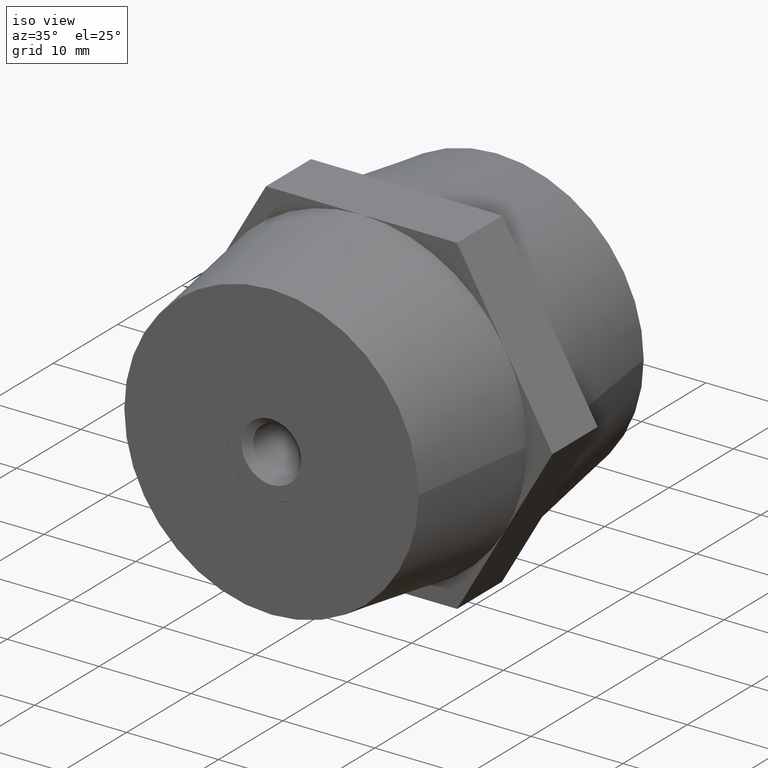
[diagram: clean part render]
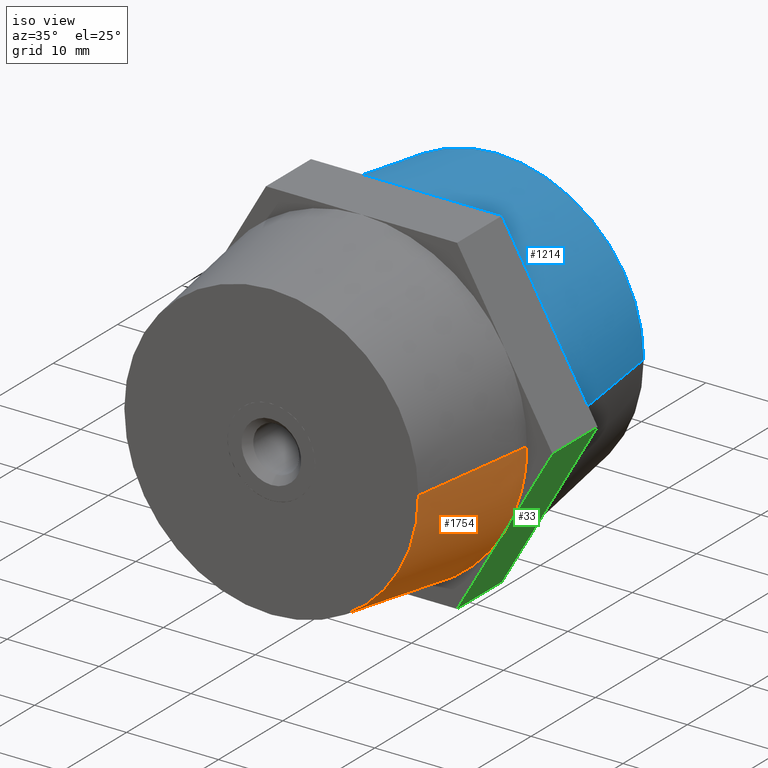
[diagram: same view with three faces highlighted in distinct colors, each labeled with its STEP entity id]
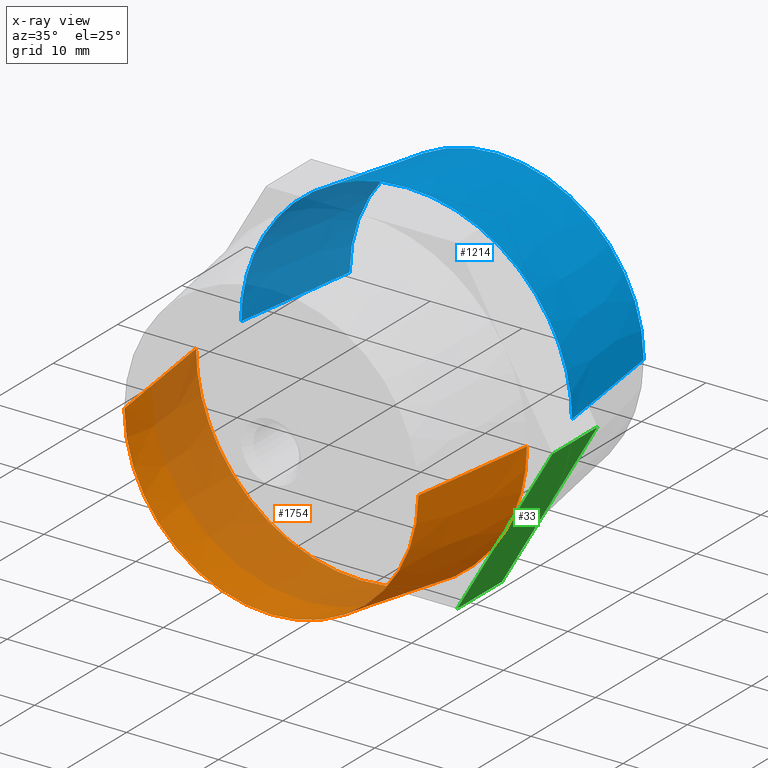
[diagram: x-ray of the same camera — body ghosted, the three highlighted faces saturated]
A machine part, iso view with three faces highlighted in distinct colors.
The next image is the same camera in x-ray (body ghosted, the three faces saturated) — at least one of them is partly hidden behind the body in this view.
Their STEP definitions:

[orange] entity #1754 — the highlighted conical surface has half-angle 8.13 deg.
#10 = AXIS2_PLACEMENT_3D ( 'NONE', #3198, #2613, #488 ) ;
#69 = DIRECTION ( 'NONE',  ( -0.1414213562373103400, 0.9899494936611663600, 0.0000000000000000000 ) ) ;
#85 = ORIENTED_EDGE ( 'NONE', *, *, #1776, .F. ) ;
#194 = DIRECTION ( 'NONE',  ( 0.0000000000000000000, 0.0000000000000000000, 1.000000000000000000 ) ) ;
#237 = CARTESIAN_POINT ( 'NONE',  ( 2.571758278209440100E-015, -3.500000000000000000, 3.149091769236069700E-016 ) ) ;
#280 = DIRECTION ( 'NONE',  ( 0.0000000000000000000, 0.0000000000000000000, 1.000000000000000000 ) ) ;
#321 = LINE ( 'NONE', #2854, #2091 ) ;
#488 = DIRECTION ( 'NONE',  ( 0.0000000000000000000, 0.0000000000000000000, 1.000000000000000000 ) ) ;
#511 = EDGE_CURVE ( 'NONE', #1406, #1223, #321, .T. ) ;
#538 = EDGE_LOOP ( 'NONE', ( #1194, #927, #1033, #85, #1609, #3114, #2915 ) ) ;
#566 = DIRECTION ( 'NONE',  ( -1.000000000000000000, -1.204669080539449300E-016, 0.0000000000000000000 ) ) ;
#591 = CARTESIAN_POINT ( 'NONE',  ( 18.00000000000000400, -3.500000000000000000, 2.204364238465235400E-015 ) ) ;
#611 = DIRECTION ( 'NONE',  ( -1.000000000000000000, -2.168404344971008900E-016, 0.0000000000000000000 ) ) ;
#702 = AXIS2_PLACEMENT_3D ( 'NONE', #237, #2361, #280 ) ;
#746 = AXIS2_PLACEMENT_3D ( 'NONE', #874, #3565, #611 ) ;
#874 = CARTESIAN_POINT ( 'NONE',  ( 4.286263797015739700E-015, -17.50000000000000000, 0.0000000000000000000 ) ) ;
#927 = ORIENTED_EDGE ( 'NONE', *, *, #1779, .T. ) ;
#1003 = CARTESIAN_POINT ( 'NONE',  ( -17.99999999999999600, -3.500000000000002200, 0.0000000000000000000 ) ) ;
#1033 = ORIENTED_EDGE ( 'NONE', *, *, #2603, .T. ) ;
#1099 = AXIS2_PLACEMENT_3D ( 'NONE', #2274, #3752, #3172 ) ;
#1194 = ORIENTED_EDGE ( 'NONE', *, *, #511, .F. ) ;
#1223 = VERTEX_POINT ( 'NONE', #591 ) ;
#1309 = CARTESIAN_POINT ( 'NONE',  ( -17.99999999999999600, -3.500000000000000000, 0.0000000000000000000 ) ) ;
#1317 = VERTEX_POINT ( 'NONE', #1590 ) ;
#1399 = VECTOR ( 'NONE', #69, 1000.000000000000100 ) ;
#1406 = VERTEX_POINT ( 'NONE', #1954 ) ;
#1560 = EDGE_CURVE ( 'NONE', #1223, #3105, #3568, .T. ) ;
#1590 = CARTESIAN_POINT ( 'NONE',  ( -4.328709192648795100E-016, -3.500000000000000000, -18.00000000000000000 ) ) ;
#1609 = ORIENTED_EDGE ( 'NONE', *, *, #2960, .F. ) ;
#1754 = ADVANCED_FACE ( 'NONE', ( #1992 ), #3094, .T. ) ;
#1776 = EDGE_CURVE ( 'NONE', #2117, #2884, #3893, .T. ) ;
#1779 = EDGE_CURVE ( 'NONE', #1406, #3116, #3381, .T. ) ;
#1827 = CARTESIAN_POINT ( 'NONE',  ( 2.571758278209440100E-015, -3.500000000000000000, 0.0000000000000000000 ) ) ;
#1883 = LINE ( 'NONE', #1003, #1399 ) ;
#1954 = CARTESIAN_POINT ( 'NONE',  ( 16.00000000000000400, -17.49999999999999600, 2.081899558550500300E-015 ) ) ;
#1992 = FACE_OUTER_BOUND ( 'NONE', #538, .T. ) ;
#2091 = VECTOR ( 'NONE', #3181, 1000.000000000000100 ) ;
#2117 = VERTEX_POINT ( 'NONE', #2547 ) ;
#2194 = AXIS2_PLACEMENT_3D ( 'NONE', #2540, #3158, #194 ) ;
#2196 = CIRCLE ( 'NONE', #1099, 18.00000000000000000 ) ;
#2274 = CARTESIAN_POINT ( 'NONE',  ( 2.571758278209440100E-015, -3.500000000000000000, 3.149091769236069700E-016 ) ) ;
#2328 = CARTESIAN_POINT ( 'NONE',  ( 15.58845726811990100, -3.500000000000000000, -9.000000000000000000 ) ) ;
#2361 = DIRECTION ( 'NONE',  ( 0.0000000000000000000, 1.000000000000000000, 0.0000000000000000000 ) ) ;
#2540 = CARTESIAN_POINT ( 'NONE',  ( 2.571758278209440100E-015, -3.500000000000000000, 3.149091769236069700E-016 ) ) ;
#2547 = CARTESIAN_POINT ( 'NONE',  ( -15.58845726811990100, -3.500000000000000000, -9.000000000000000000 ) ) ;
#2603 = EDGE_CURVE ( 'NONE', #3116, #2884, #1883, .T. ) ;
#2613 = DIRECTION ( 'NONE',  ( 0.0000000000000000000, 1.000000000000000000, 0.0000000000000000000 ) ) ;
#2624 = CARTESIAN_POINT ( 'NONE',  ( -15.99999999999999600, -17.50000000000000400, 0.0000000000000000000 ) ) ;
#2645 = AXIS2_PLACEMENT_3D ( 'NONE', #1827, #2975, #566 ) ;
#2854 = CARTESIAN_POINT ( 'NONE',  ( 18.00000000000000400, -3.499999999999997800, 2.204364238465235400E-015 ) ) ;
#2877 = CIRCLE ( 'NONE', #2194, 18.00000000000000000 ) ;
#2884 = VERTEX_POINT ( 'NONE', #1309 ) ;
#2915 = ORIENTED_EDGE ( 'NONE', *, *, #1560, .F. ) ;
#2960 = EDGE_CURVE ( 'NONE', #1317, #2117, #2196, .T. ) ;
#2975 = DIRECTION ( 'NONE',  ( -1.224646799147352000E-016, 1.000000000000000000, 0.0000000000000000000 ) ) ;
#3006 = EDGE_CURVE ( 'NONE', #3105, #1317, #2877, .T. ) ;
#3094 = CONICAL_SURFACE ( 'NONE', #2645, 18.00000000000000000, 0.1418970546041646900 ) ;
#3105 = VERTEX_POINT ( 'NONE', #2328 ) ;
#3114 = ORIENTED_EDGE ( 'NONE', *, *, #3006, .F. ) ;
#3116 = VERTEX_POINT ( 'NONE', #2624 ) ;
#3158 = DIRECTION ( 'NONE',  ( 0.0000000000000000000, 1.000000000000000000, 0.0000000000000000000 ) ) ;
#3172 = DIRECTION ( 'NONE',  ( 0.0000000000000000000, 0.0000000000000000000, 1.000000000000000000 ) ) ;
#3181 = DIRECTION ( 'NONE',  ( 0.1414213562373101100, 0.9899494936611663600, 1.731912112470995400E-017 ) ) ;
#3198 = CARTESIAN_POINT ( 'NONE',  ( 2.571758278209440100E-015, -3.500000000000000000, 3.149091769236069700E-016 ) ) ;
#3381 = CIRCLE ( 'NONE', #746, 16.00000000000000000 ) ;
#3565 = DIRECTION ( 'NONE',  ( -1.224646799147352000E-016, 1.000000000000000000, 0.0000000000000000000 ) ) ;
#3568 = CIRCLE ( 'NONE', #10, 18.00000000000000000 ) ;
#3752 = DIRECTION ( 'NONE',  ( 0.0000000000000000000, 1.000000000000000000, 0.0000000000000000000 ) ) ;
#3893 = CIRCLE ( 'NONE', #702, 18.00000000000000000 ) ;

[blue] entity #1214 — the highlighted conical surface has half-angle 8.13 deg.
#32 = LINE ( 'NONE', #2963, #3326 ) ;
#50 = CARTESIAN_POINT ( 'NONE',  ( -15.58845726811990100, 3.500000000000000000, 9.000000000000000000 ) ) ;
#266 = DIRECTION ( 'NONE',  ( -1.224646799147352000E-016, 1.000000000000000000, 0.0000000000000000000 ) ) ;
#272 = CARTESIAN_POINT ( 'NONE',  ( 1.714505518806294800E-015, 3.500000000000000000, 0.0000000000000000000 ) ) ;
#407 = CIRCLE ( 'NONE', #2785, 16.00000000000000000 ) ;
#508 = CIRCLE ( 'NONE', #1375, 18.00000000000000000 ) ;
#550 = EDGE_CURVE ( 'NONE', #3098, #3527, #32, .T. ) ;
#598 = CIRCLE ( 'NONE', #1039, 18.00000000000000000 ) ;
#735 = EDGE_CURVE ( 'NONE', #2064, #2381, #3462, .T. ) ;
#793 = VECTOR ( 'NONE', #3066, 1000.000000000000100 ) ;
#823 = EDGE_LOOP ( 'NONE', ( #1412, #1063, #3229, #2042, #3303, #3525, #2940 ) ) ;
#892 = CARTESIAN_POINT ( 'NONE',  ( 1.714505518806294800E-015, 3.500000000000000000, 0.0000000000000000000 ) ) ;
#990 = EDGE_CURVE ( 'NONE', #2378, #2064, #508, .T. ) ;
#1011 = VERTEX_POINT ( 'NONE', #2326 ) ;
#1039 = AXIS2_PLACEMENT_3D ( 'NONE', #3846, #1803, #2099 ) ;
#1063 = ORIENTED_EDGE ( 'NONE', *, *, #550, .T. ) ;
#1070 = CARTESIAN_POINT ( 'NONE',  ( -3.004629197474319600E-015, 3.500000000000000000, 18.00000000000000000 ) ) ;
#1113 = CARTESIAN_POINT ( 'NONE',  ( 1.714505518806294800E-015, 3.500000000000000000, 0.0000000000000000000 ) ) ;
#1139 = DIRECTION ( 'NONE',  ( -0.1414213562373099200, -0.9899494936611664700, 1.731912112470992900E-017 ) ) ;
#1214 = ADVANCED_FACE ( 'NONE', ( #3323 ), #3190, .T. ) ;
#1260 = CARTESIAN_POINT ( 'NONE',  ( -2.399615652258974800E-031, 17.50000000000000000, 0.0000000000000000000 ) ) ;
#1291 = EDGE_CURVE ( 'NONE', #3838, #1011, #2404, .T. ) ;
#1375 = AXIS2_PLACEMENT_3D ( 'NONE', #892, #2941, #1641 ) ;
#1412 = ORIENTED_EDGE ( 'NONE', *, *, #1695, .F. ) ;
#1456 = AXIS2_PLACEMENT_3D ( 'NONE', #1260, #2140, #3025 ) ;
#1641 = DIRECTION ( 'NONE',  ( -1.000000000000000000, -1.204669080539449300E-016, 0.0000000000000000000 ) ) ;
#1695 = EDGE_CURVE ( 'NONE', #3098, #3838, #407, .T. ) ;
#1764 = CARTESIAN_POINT ( 'NONE',  ( -2.399615652258974800E-031, 17.50000000000000000, 0.0000000000000000000 ) ) ;
#1803 = DIRECTION ( 'NONE',  ( -1.224646799147352000E-016, 1.000000000000000000, 0.0000000000000000000 ) ) ;
#1805 = EDGE_CURVE ( 'NONE', #3527, #2378, #598, .T. ) ;
#1851 = CARTESIAN_POINT ( 'NONE',  ( 16.00000000000000000, 17.50000000000000400, 0.0000000000000000000 ) ) ;
#2041 = CARTESIAN_POINT ( 'NONE',  ( -16.00000000000000000, 17.49999999999999600, 2.081899558550501100E-015 ) ) ;
#2042 = ORIENTED_EDGE ( 'NONE', *, *, #990, .T. ) ;
#2061 = DIRECTION ( 'NONE',  ( -1.000000000000000000, -2.168404344971008900E-016, 0.0000000000000000000 ) ) ;
#2064 = VERTEX_POINT ( 'NONE', #1070 ) ;
#2099 = DIRECTION ( 'NONE',  ( -1.000000000000000000, -1.204669080539449300E-016, 0.0000000000000000000 ) ) ;
#2140 = DIRECTION ( 'NONE',  ( 1.224646799147352000E-016, -1.000000000000000000, 0.0000000000000000000 ) ) ;
#2149 = EDGE_CURVE ( 'NONE', #2381, #1011, #3608, .T. ) ;
#2281 = DIRECTION ( 'NONE',  ( -1.000000000000000000, -1.204669080539449300E-016, 0.0000000000000000000 ) ) ;
#2326 = CARTESIAN_POINT ( 'NONE',  ( 18.00000000000001100, 3.500000000000001800, 0.0000000000000000000 ) ) ;
#2378 = VERTEX_POINT ( 'NONE', #50 ) ;
#2381 = VERTEX_POINT ( 'NONE', #2700 ) ;
#2404 = LINE ( 'NONE', #3600, #793 ) ;
#2533 = AXIS2_PLACEMENT_3D ( 'NONE', #1113, #3451, #2281 ) ;
#2700 = CARTESIAN_POINT ( 'NONE',  ( 15.58845726811990100, 3.500000000000000000, 9.000000000000000000 ) ) ;
#2785 = AXIS2_PLACEMENT_3D ( 'NONE', #1764, #3833, #2061 ) ;
#2806 = CARTESIAN_POINT ( 'NONE',  ( -18.00000000000000700, 3.499999999999998200, 2.204364238465236600E-015 ) ) ;
#2878 = DIRECTION ( 'NONE',  ( -1.000000000000000000, -1.204669080539449300E-016, 0.0000000000000000000 ) ) ;
#2940 = ORIENTED_EDGE ( 'NONE', *, *, #1291, .F. ) ;
#2941 = DIRECTION ( 'NONE',  ( -1.224646799147352000E-016, 1.000000000000000000, 0.0000000000000000000 ) ) ;
#2963 = CARTESIAN_POINT ( 'NONE',  ( -16.00000000000000000, 17.49999999999999600, 1.959434878635765100E-015 ) ) ;
#3025 = DIRECTION ( 'NONE',  ( 1.000000000000000000, 2.168404344971008900E-016, 0.0000000000000000000 ) ) ;
#3066 = DIRECTION ( 'NONE',  ( 0.1414213562373101100, -0.9899494936611663600, 0.0000000000000000000 ) ) ;
#3098 = VERTEX_POINT ( 'NONE', #2041 ) ;
#3190 = CONICAL_SURFACE ( 'NONE', #1456, 16.00000000000000000, 0.1418970546041644600 ) ;
#3229 = ORIENTED_EDGE ( 'NONE', *, *, #1805, .T. ) ;
#3303 = ORIENTED_EDGE ( 'NONE', *, *, #735, .T. ) ;
#3323 = FACE_OUTER_BOUND ( 'NONE', #823, .T. ) ;
#3326 = VECTOR ( 'NONE', #1139, 1000.000000000000000 ) ;
#3451 = DIRECTION ( 'NONE',  ( -1.224646799147352000E-016, 1.000000000000000000, 0.0000000000000000000 ) ) ;
#3462 = CIRCLE ( 'NONE', #3627, 18.00000000000000000 ) ;
#3525 = ORIENTED_EDGE ( 'NONE', *, *, #2149, .T. ) ;
#3527 = VERTEX_POINT ( 'NONE', #2806 ) ;
#3600 = CARTESIAN_POINT ( 'NONE',  ( 16.00000000000000000, 17.50000000000000400, 0.0000000000000000000 ) ) ;
#3608 = CIRCLE ( 'NONE', #2533, 18.00000000000000000 ) ;
#3627 = AXIS2_PLACEMENT_3D ( 'NONE', #272, #266, #2878 ) ;
#3833 = DIRECTION ( 'NONE',  ( -1.224646799147352000E-016, 1.000000000000000000, 0.0000000000000000000 ) ) ;
#3838 = VERTEX_POINT ( 'NONE', #1851 ) ;
#3846 = CARTESIAN_POINT ( 'NONE',  ( 1.714505518806294800E-015, 3.500000000000000000, 0.0000000000000000000 ) ) ;

[green] entity #33 — the highlighted planar face has unit normal (-0.866, 0, 0.5).
#33 = ADVANCED_FACE ( 'NONE', ( #2955 ), #661, .F. ) ;
#52 = DIRECTION ( 'NONE',  ( 0.4999999999999998900, 0.0000000000000000000, 0.8660254037844387100 ) ) ;
#78 = EDGE_CURVE ( 'NONE', #3105, #97, #2668, .T. ) ;
#97 = VERTEX_POINT ( 'NONE', #1052 ) ;
#154 = ORIENTED_EDGE ( 'NONE', *, *, #251, .F. ) ;
#168 = EDGE_CURVE ( 'NONE', #546, #3105, #3452, .T. ) ;
#251 = EDGE_CURVE ( 'NONE', #1932, #2075, #1802, .T. ) ;
#349 = CARTESIAN_POINT ( 'NONE',  ( 20.78460969082650000, -3.500000000000000000, -6.608846250413570600E-015 ) ) ;
#358 = EDGE_CURVE ( 'NONE', #3645, #546, #3276, .T. ) ;
#476 = ORIENTED_EDGE ( 'NONE', *, *, #78, .T. ) ;
#480 = ORIENTED_EDGE ( 'NONE', *, *, #3461, .F. ) ;
#546 = VERTEX_POINT ( 'NONE', #1471 ) ;
#661 = PLANE ( 'NONE',  #3611 ) ;
#1052 = CARTESIAN_POINT ( 'NONE',  ( 10.39230484541326000, -3.500000000000000000, -18.00000000000000000 ) ) ;
#1076 = VECTOR ( 'NONE', #2506, 1000.000000000000000 ) ;
#1077 = LINE ( 'NONE', #2334, #2261 ) ;
#1082 = CARTESIAN_POINT ( 'NONE',  ( 20.78460969082650000, 3.500000000000000000, -6.608846250413570600E-015 ) ) ;
#1369 = VECTOR ( 'NONE', #3143, 1000.000000000000000 ) ;
#1372 = ORIENTED_EDGE ( 'NONE', *, *, #168, .T. ) ;
#1471 = CARTESIAN_POINT ( 'NONE',  ( 20.78460969082650000, -3.500000000000000000, -6.608846250413570600E-015 ) ) ;
#1661 = CARTESIAN_POINT ( 'NONE',  ( 10.39230484541326000, 3.500000000000000000, -18.00000000000000000 ) ) ;
#1784 = LINE ( 'NONE', #2446, #3383 ) ;
#1802 = LINE ( 'NONE', #1082, #2849 ) ;
#1841 = CARTESIAN_POINT ( 'NONE',  ( 15.58845726811990100, 3.500000000000000000, -9.000000000000000000 ) ) ;
#1932 = VERTEX_POINT ( 'NONE', #1841 ) ;
#2075 = VERTEX_POINT ( 'NONE', #1661 ) ;
#2211 = EDGE_CURVE ( 'NONE', #3645, #1932, #1077, .T. ) ;
#2245 = CARTESIAN_POINT ( 'NONE',  ( 20.78460969082650000, 3.500000000000000000, -6.608846250413570600E-015 ) ) ;
#2247 = CARTESIAN_POINT ( 'NONE',  ( 20.78460969082650000, -3.500000000000000000, -6.608846250413570600E-015 ) ) ;
#2261 = VECTOR ( 'NONE', #3481, 1000.000000000000000 ) ;
#2328 = CARTESIAN_POINT ( 'NONE',  ( 15.58845726811990100, -3.500000000000000000, -9.000000000000000000 ) ) ;
#2334 = CARTESIAN_POINT ( 'NONE',  ( 20.78460969082650000, 3.500000000000000000, -6.608846250413570600E-015 ) ) ;
#2363 = EDGE_LOOP ( 'NONE', ( #1372, #476, #480, #154, #3238, #3312 ) ) ;
#2446 = CARTESIAN_POINT ( 'NONE',  ( 10.39230484541326000, 3.500000000000000000, -18.00000000000000000 ) ) ;
#2506 = DIRECTION ( 'NONE',  ( -0.4999999999999998900, 0.0000000000000000000, -0.8660254037844387100 ) ) ;
#2585 = CARTESIAN_POINT ( 'NONE',  ( 20.78460969082650000, 3.500000000000000000, -6.608846250413570600E-015 ) ) ;
#2668 = LINE ( 'NONE', #349, #1369 ) ;
#2815 = DIRECTION ( 'NONE',  ( 0.0000000000000000000, -1.000000000000000000, 0.0000000000000000000 ) ) ;
#2849 = VECTOR ( 'NONE', #3196, 1000.000000000000000 ) ;
#2904 = VECTOR ( 'NONE', #2815, 1000.000000000000000 ) ;
#2955 = FACE_OUTER_BOUND ( 'NONE', #2363, .T. ) ;
#3063 = DIRECTION ( 'NONE',  ( -0.8660254037844387100, 0.0000000000000000000, 0.4999999999999998900 ) ) ;
#3105 = VERTEX_POINT ( 'NONE', #2328 ) ;
#3143 = DIRECTION ( 'NONE',  ( -0.4999999999999998900, 0.0000000000000000000, -0.8660254037844387100 ) ) ;
#3196 = DIRECTION ( 'NONE',  ( -0.4999999999999998900, 0.0000000000000000000, -0.8660254037844387100 ) ) ;
#3238 = ORIENTED_EDGE ( 'NONE', *, *, #2211, .F. ) ;
#3276 = LINE ( 'NONE', #2245, #2904 ) ;
#3312 = ORIENTED_EDGE ( 'NONE', *, *, #358, .T. ) ;
#3337 = DIRECTION ( 'NONE',  ( 0.0000000000000000000, -1.000000000000000000, 0.0000000000000000000 ) ) ;
#3383 = VECTOR ( 'NONE', #3337, 1000.000000000000000 ) ;
#3452 = LINE ( 'NONE', #2247, #1076 ) ;
#3461 = EDGE_CURVE ( 'NONE', #2075, #97, #1784, .T. ) ;
#3481 = DIRECTION ( 'NONE',  ( -0.4999999999999998900, 0.0000000000000000000, -0.8660254037844387100 ) ) ;
#3611 = AXIS2_PLACEMENT_3D ( 'NONE', #3668, #3063, #52 ) ;
#3645 = VERTEX_POINT ( 'NONE', #2585 ) ;
#3668 = CARTESIAN_POINT ( 'NONE',  ( 20.78460969082650000, 3.500000000000000000, -6.608846250413570600E-015 ) ) ;